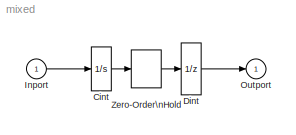
MODEL mixed
KIND model
CONFIG AbsTol = 1e-6
CONFIG FixedStep = .1
CONFIG MaxStep = .1
CONFIG MinStep = auto
CONFIG RelTol = 1e-3
CONFIG Solver = ode5
CONFIG SolverMode = SingleTasking
CONFIG StartTime = 0.0
CONFIG StopTime = 10
BLOCK [Integrator] Cint
  AbsoluteTolerance = auto
  ExternalReset = none
  InitialCondition = 1
  InitialConditionSource = internal
  LimitOutput = off
  LowerSaturationLimit = -inf
  Ports = [1, 1]
  ShowSaturationPort = off
  ShowStatePort = off
  UpperSaturationLimit = inf
BLOCK [UnitDelay] Dint
  RTWStateStorageClass = Auto
  SampleTime = 1
  X0 = 1
BLOCK [Inport] Inport
  Interpolate = on
  LatchInput = off
  Port = 1
BLOCK [Outport] Outport
  InitialOutput = 0
  OutputWhenDisabled = held
  Port = 1
BLOCK [ZeroOrderHold] Zero-Order\nHold
  SampleTime = 1
LINE Cint:1 -> Zero-Order\nHold:1
LINE Dint:1 -> Outport:1
LINE Inport:1 -> Cint:1
LINE Zero-Order\nHold:1 -> Dint:1
